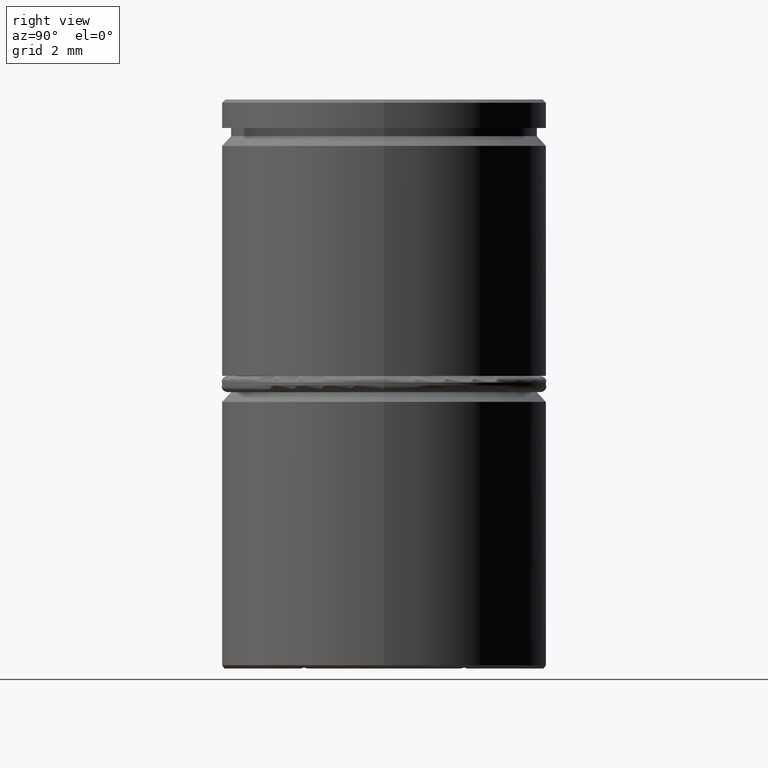
[diagram: clean part render]
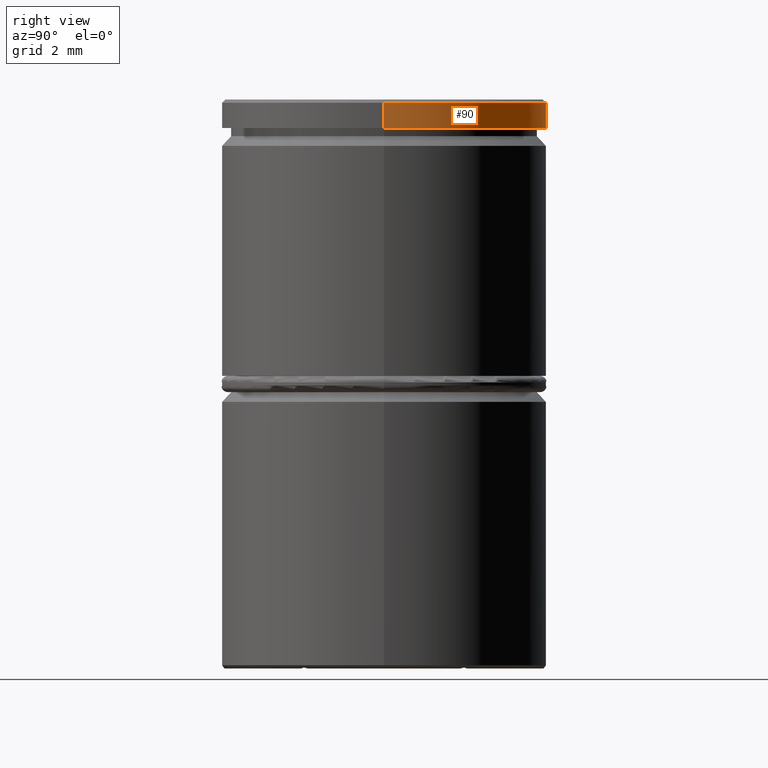
[diagram: same view with one face highlighted and labeled with its STEP entity id]
A machine part, right view. The second image highlights one B-rep face of the part: STEP entity #90.
In plain terms, the highlighted cylindrical surface (partial cylindrical patch) has radius 5 mm, axis along (-0, -0, 1).
Its self-contained STEP definition (entity closure, byte-faithful):
#32 = FACE_OUTER_BOUND ( 'NONE', #1270, .T. ) ;
#44 = EDGE_CURVE ( 'NONE', #377, #810, #558, .T. ) ;
#90 = ADVANCED_FACE ( 'NONE', ( #32 ), #1126, .T. ) ;
#110 = DIRECTION ( 'NONE',  ( 1.000000000000000000, 0.000000000000000000, 0.000000000000000000 ) ) ;
#113 = EDGE_CURVE ( 'NONE', #377, #1049, #1090, .T. ) ;
#202 = DIRECTION ( 'NONE',  ( -0.000000000000000000, -0.000000000000000000, 1.000000000000000000 ) ) ;
#280 = ORIENTED_EDGE ( 'NONE', *, *, #44, .F. ) ;
#314 = DIRECTION ( 'NONE',  ( -0.000000000000000000, -0.000000000000000000, 1.000000000000000000 ) ) ;
#368 = EDGE_CURVE ( 'NONE', #1149, #810, #411, .T. ) ;
#377 = VERTEX_POINT ( 'NONE', #952 ) ;
#396 = ORIENTED_EDGE ( 'NONE', *, *, #113, .T. ) ;
#411 = CIRCLE ( 'NONE', #502, 5.000000000000000000 ) ;
#420 = ORIENTED_EDGE ( 'NONE', *, *, #1370, .T. ) ;
#453 = CARTESIAN_POINT ( 'NONE',  ( -5.000000000000000000, 6.123233995736766282E-16, -0.09999999999999505118 ) ) ;
#502 = AXIS2_PLACEMENT_3D ( 'NONE', #1292, #1056, #110 ) ;
#551 = AXIS2_PLACEMENT_3D ( 'NONE', #1210, #887, #874 ) ;
#558 = LINE ( 'NONE', #1198, #1331 ) ;
#571 = CARTESIAN_POINT ( 'NONE',  ( 5.000000000000000000, 0.000000000000000000, -0.09999999999999505118 ) ) ;
#618 = CARTESIAN_POINT ( 'NONE',  ( 0.000000000000000000, 0.000000000000000000, -0.8749999999999998890 ) ) ;
#711 = AXIS2_PLACEMENT_3D ( 'NONE', #618, #202, #1034 ) ;
#785 = CARTESIAN_POINT ( 'NONE',  ( -5.000000000000000000, 6.123233995736766282E-16, 0.000000000000000000 ) ) ;
#810 = VERTEX_POINT ( 'NONE', #571 ) ;
#874 = DIRECTION ( 'NONE',  ( 1.000000000000000000, 0.000000000000000000, 0.000000000000000000 ) ) ;
#887 = DIRECTION ( 'NONE',  ( -0.000000000000000000, -0.000000000000000000, 1.000000000000000000 ) ) ;
#952 = CARTESIAN_POINT ( 'NONE',  ( 5.000000000000000000, 0.000000000000000000, -0.8749999999999998890 ) ) ;
#986 = DIRECTION ( 'NONE',  ( -0.000000000000000000, -0.000000000000000000, 1.000000000000000000 ) ) ;
#1034 = DIRECTION ( 'NONE',  ( 1.000000000000000000, 0.000000000000000000, 0.000000000000000000 ) ) ;
#1049 = VERTEX_POINT ( 'NONE', #1166 ) ;
#1056 = DIRECTION ( 'NONE',  ( 0.000000000000000000, 0.000000000000000000, -1.000000000000000000 ) ) ;
#1090 = CIRCLE ( 'NONE', #711, 5.000000000000000000 ) ;
#1126 = CYLINDRICAL_SURFACE ( 'NONE', #551, 5.000000000000000000 ) ;
#1149 = VERTEX_POINT ( 'NONE', #453 ) ;
#1166 = CARTESIAN_POINT ( 'NONE',  ( -5.000000000000000000, 6.123233995736766282E-16, -0.8749999999999998890 ) ) ;
#1167 = ORIENTED_EDGE ( 'NONE', *, *, #368, .T. ) ;
#1183 = VECTOR ( 'NONE', #314, 1000.000000000000000 ) ;
#1198 = CARTESIAN_POINT ( 'NONE',  ( 5.000000000000000000, 0.000000000000000000, 0.000000000000000000 ) ) ;
#1210 = CARTESIAN_POINT ( 'NONE',  ( 0.000000000000000000, 0.000000000000000000, 0.000000000000000000 ) ) ;
#1211 = LINE ( 'NONE', #785, #1183 ) ;
#1270 = EDGE_LOOP ( 'NONE', ( #396, #420, #1167, #280 ) ) ;
#1292 = CARTESIAN_POINT ( 'NONE',  ( 0.000000000000000000, 0.000000000000000000, -0.09999999999999505118 ) ) ;
#1331 = VECTOR ( 'NONE', #986, 1000.000000000000000 ) ;
#1370 = EDGE_CURVE ( 'NONE', #1049, #1149, #1211, .T. ) ;